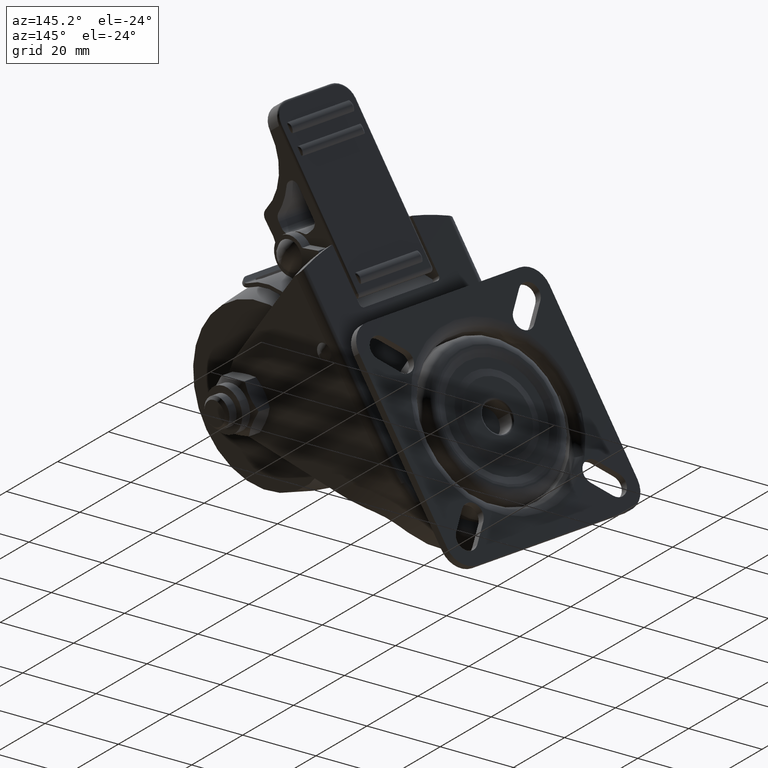
[diagram: clean part render]
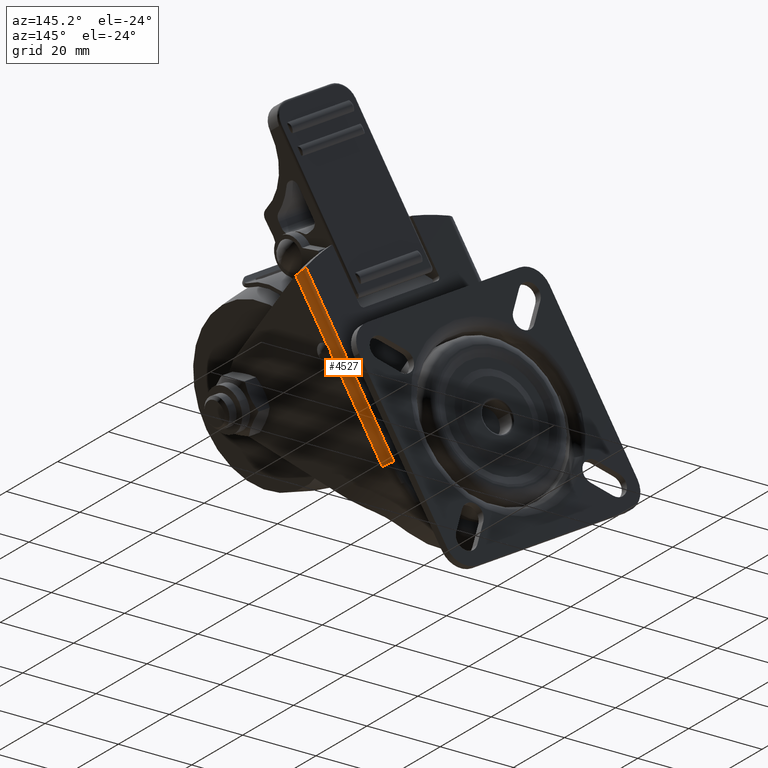
[diagram: same view with one face highlighted and labeled with its STEP entity id]
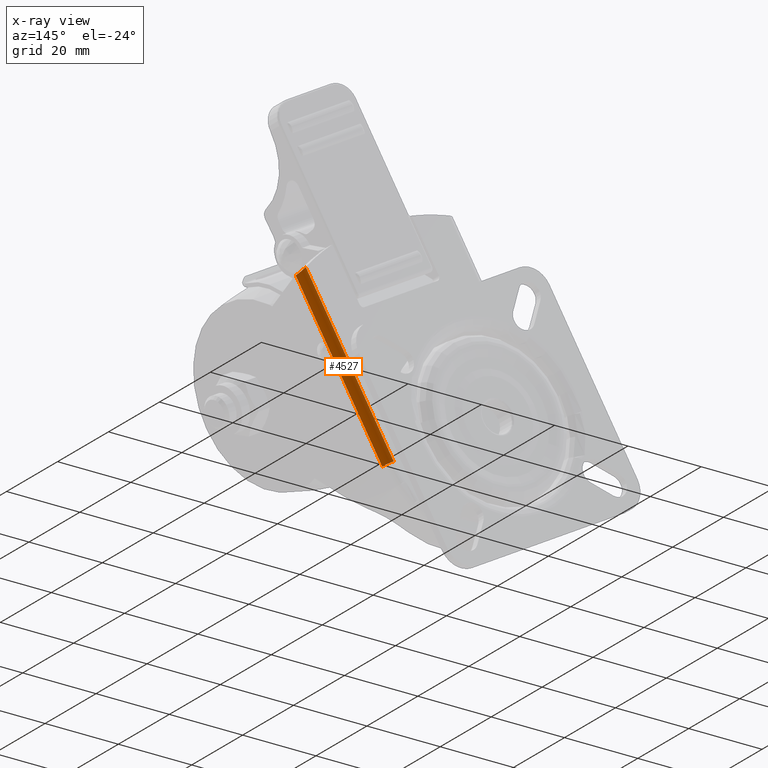
[diagram: x-ray of the same camera — body ghosted, the highlighted face saturated]
A machine part, auxiliary view. The second image highlights one B-rep face of the part: STEP entity #4527.
The next image is the same camera in x-ray: the body ghosted, the highlighted face saturated — about 0% of this face is hidden behind the body in this view.
In plain terms, the highlighted cylindrical surface (edge-blend (fillet) strip) has radius 2 mm, axis along (-0.5, -0, -0.866).
Its self-contained STEP definition (entity closure, byte-faithful):
#435=FACE_OUTER_BOUND('',#716,.T.);
#716=EDGE_LOOP('',(#3118,#3119,#3120,#3121));
#1118=CIRCLE('',#4829,2.);
#1376=LINE('',#6814,#1650);
#1377=LINE('',#6817,#1651);
#1650=VECTOR('',#5397,47.2424242424242);
#1651=VECTOR('',#5400,48.0117873221192);
#1924=B_SPLINE_CURVE_WITH_KNOTS('',3,(#6803,#6804,#6805,#6806,#6807,#6808,
#6809,#6810,#6811,#6812),.UNSPECIFIED.,.F.,.F.,(4,2,2,2,4),(0.310405046648404,
0.391291836035102,0.4721786254218,0.547330913882953,0.622483202344106),
 .UNSPECIFIED.);
#2008=VERTEX_POINT('',#6801);
#2009=VERTEX_POINT('',#6802);
#2010=VERTEX_POINT('',#6813);
#2011=VERTEX_POINT('',#6815);
#2466=EDGE_CURVE('',#2008,#2009,#1924,.T.);
#2467=EDGE_CURVE('',#2009,#2010,#1376,.T.);
#2468=EDGE_CURVE('',#2010,#2011,#1118,.T.);
#2469=EDGE_CURVE('',#2011,#2008,#1377,.T.);
#3118=ORIENTED_EDGE('',*,*,#2466,.T.);
#3119=ORIENTED_EDGE('',*,*,#2467,.T.);
#3120=ORIENTED_EDGE('',*,*,#2468,.T.);
#3121=ORIENTED_EDGE('',*,*,#2469,.T.);
#4422=CYLINDRICAL_SURFACE('',#4828,2.);
#4527=ADVANCED_FACE('',(#435),#4422,.T.);
#4828=AXIS2_PLACEMENT_3D('',#6800,#5395,#5396);
#4829=AXIS2_PLACEMENT_3D('',#6816,#5398,#5399);
#5395=DIRECTION('center_axis',(1.85037170770859E-16,-1.,0.));
#5396=DIRECTION('ref_axis',(0.707106781186548,0.,-0.707106781186547));
#5397=DIRECTION('',(1.85037170770859E-16,-1.,0.));
#5398=DIRECTION('center_axis',(-2.77555756156289E-16,1.,0.));
#5399=DIRECTION('ref_axis',(1.,2.77555756156289E-16,0.));
#5400=DIRECTION('',(-1.85037170770859E-16,1.,0.));
#6800=CARTESIAN_POINT('Origin',(22.5,9.26275701863462,2.));
#6801=CARTESIAN_POINT('',(22.5,48.0117873221192,0.));
#6802=CARTESIAN_POINT('',(24.5,47.2424242424242,2.));
#6803=CARTESIAN_POINT('Ctrl Pts',(22.5,48.0117873221192,8.06646416329215E-16));
#6804=CARTESIAN_POINT('Ctrl Pts',(22.7531962152642,47.91911564425,-9.44499914990586E-16));
#6805=CARTESIAN_POINT('Ctrl Pts',(23.0235979458573,47.81819222597,0.0508653777531819));
#6806=CARTESIAN_POINT('Ctrl Pts',(23.5229040488495,47.6282705312432,0.260187403816087));
#6807=CARTESIAN_POINT('Ctrl Pts',(23.7518240340805,47.5393583469748,0.418684911939232));
#6808=CARTESIAN_POINT('Ctrl Pts',(24.1017136597439,47.4019234424626,0.778162844106096));
#6809=CARTESIAN_POINT('Ctrl Pts',(24.250763462426,47.3425148883428,0.998148590125585));
#6810=CARTESIAN_POINT('Ctrl Pts',(24.4499716105701,47.2626861608338,1.48377370451919));
#6811=CARTESIAN_POINT('Ctrl Pts',(24.5,47.2424242424242,1.74949237179616));
#6812=CARTESIAN_POINT('Ctrl Pts',(24.5,47.2424242424242,2.));
#6813=CARTESIAN_POINT('',(24.5,6.10622663543836E-15,2.));
#6814=CARTESIAN_POINT('',(24.5,9.26275701863462,2.));
#6815=CARTESIAN_POINT('',(22.5,5.55111512312578E-15,0.));
#6816=CARTESIAN_POINT('Origin',(22.5,5.55111512312578E-15,2.));
#6817=CARTESIAN_POINT('',(22.5,9.26275701863462,0.));